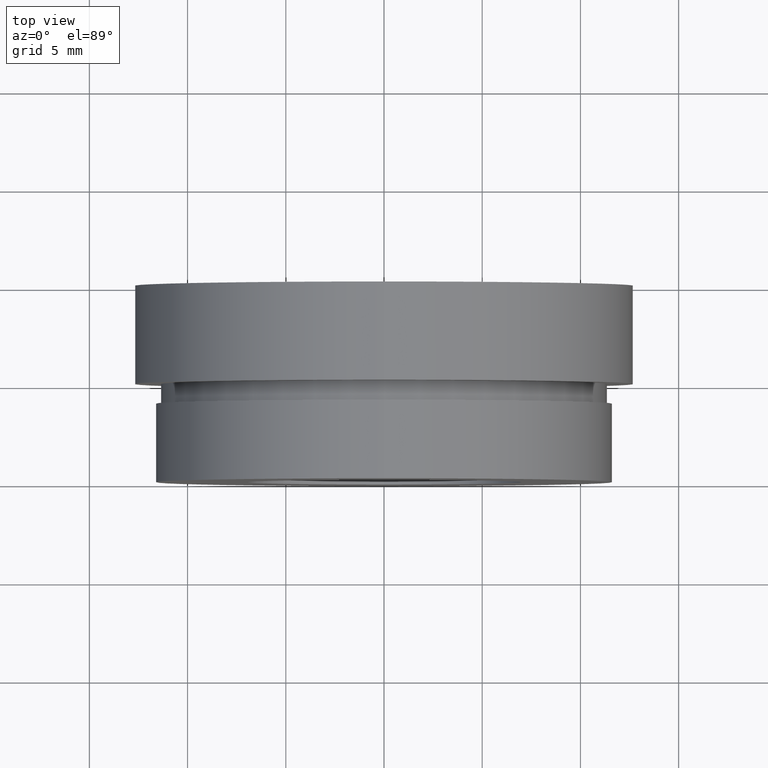
[diagram: clean part render]
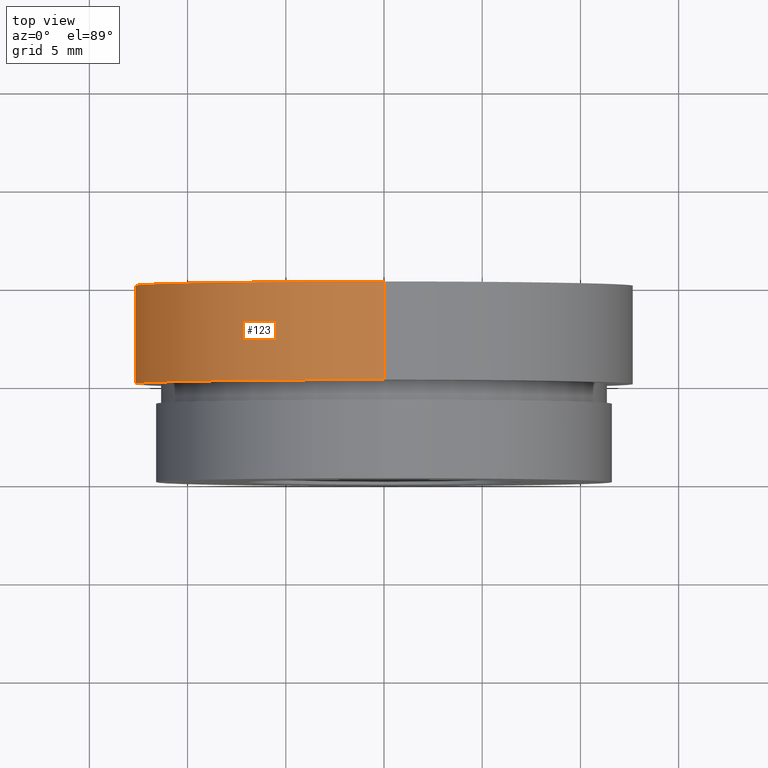
[diagram: same view with one face highlighted and labeled with its STEP entity id]
A machine part, top view. The second image highlights one B-rep face of the part: STEP entity #123.
In plain terms, the highlighted cylindrical surface (partial cylindrical patch) has radius 12.7 mm, axis along (-0, 1, -0).
Its self-contained STEP definition (entity closure, byte-faithful):
#20 = VERTEX_POINT ( 'NONE', #261 ) ;
#28 = CYLINDRICAL_SURFACE ( 'NONE', #325, 12.70000000000000100 ) ;
#37 = EDGE_LOOP ( 'NONE', ( #588, #603, #536, #210 ) ) ;
#54 = DIRECTION ( 'NONE',  ( 0.0000000000000000000, 0.0000000000000000000, 1.000000000000000000 ) ) ;
#72 = CARTESIAN_POINT ( 'NONE',  ( 1.555301434917138600E-015, 13.74468085106383300, -12.70000000000000100 ) ) ;
#98 = CARTESIAN_POINT ( 'NONE',  ( 0.0000000000000000000, 10.00000000000000000, 12.70000000000000100 ) ) ;
#99 = DIRECTION ( 'NONE',  ( -0.0000000000000000000, 1.000000000000000000, -0.0000000000000000000 ) ) ;
#102 = LINE ( 'NONE', #72, #461 ) ;
#123 = ADVANCED_FACE ( 'NONE', ( #321 ), #28, .T. ) ;
#124 = AXIS2_PLACEMENT_3D ( 'NONE', #150, #152, #153 ) ;
#150 = CARTESIAN_POINT ( 'NONE',  ( 0.0000000000000000000, 5.000000000000000900, 0.0000000000000000000 ) ) ;
#152 = DIRECTION ( 'NONE',  ( -0.0000000000000000000, 1.000000000000000000, -0.0000000000000000000 ) ) ;
#153 = DIRECTION ( 'NONE',  ( 0.0000000000000000000, 0.0000000000000000000, 1.000000000000000000 ) ) ;
#154 = VERTEX_POINT ( 'NONE', #98 ) ;
#177 = VERTEX_POINT ( 'NONE', #620 ) ;
#194 = CIRCLE ( 'NONE', #124, 12.70000000000000100 ) ;
#210 = ORIENTED_EDGE ( 'NONE', *, *, #610, .F. ) ;
#211 = EDGE_CURVE ( 'NONE', #177, #154, #469, .T. ) ;
#261 = CARTESIAN_POINT ( 'NONE',  ( 1.555301434917138600E-015, 10.00000000000000000, -12.70000000000000100 ) ) ;
#303 = DIRECTION ( 'NONE',  ( -0.0000000000000000000, 1.000000000000000000, -0.0000000000000000000 ) ) ;
#321 = FACE_OUTER_BOUND ( 'NONE', #37, .T. ) ;
#325 = AXIS2_PLACEMENT_3D ( 'NONE', #412, #410, #544 ) ;
#348 = CARTESIAN_POINT ( 'NONE',  ( 0.0000000000000000000, 10.00000000000000000, 0.0000000000000000000 ) ) ;
#366 = VECTOR ( 'NONE', #303, 1000.000000000000000 ) ;
#390 = AXIS2_PLACEMENT_3D ( 'NONE', #348, #99, #54 ) ;
#399 = VERTEX_POINT ( 'NONE', #404 ) ;
#404 = CARTESIAN_POINT ( 'NONE',  ( 1.555301434917138600E-015, 5.000000000000000900, -12.70000000000000100 ) ) ;
#410 = DIRECTION ( 'NONE',  ( -0.0000000000000000000, 1.000000000000000000, -0.0000000000000000000 ) ) ;
#412 = CARTESIAN_POINT ( 'NONE',  ( 0.0000000000000000000, 13.74468085106383300, 0.0000000000000000000 ) ) ;
#413 = EDGE_CURVE ( 'NONE', #399, #20, #102, .T. ) ;
#443 = CARTESIAN_POINT ( 'NONE',  ( 0.0000000000000000000, 13.74468085106383300, 12.70000000000000100 ) ) ;
#454 = EDGE_CURVE ( 'NONE', #399, #177, #194, .T. ) ;
#461 = VECTOR ( 'NONE', #517, 1000.000000000000000 ) ;
#469 = LINE ( 'NONE', #443, #366 ) ;
#494 = CIRCLE ( 'NONE', #390, 12.70000000000000100 ) ;
#517 = DIRECTION ( 'NONE',  ( -0.0000000000000000000, 1.000000000000000000, -0.0000000000000000000 ) ) ;
#536 = ORIENTED_EDGE ( 'NONE', *, *, #211, .T. ) ;
#544 = DIRECTION ( 'NONE',  ( 0.0000000000000000000, 0.0000000000000000000, 1.000000000000000000 ) ) ;
#588 = ORIENTED_EDGE ( 'NONE', *, *, #413, .F. ) ;
#603 = ORIENTED_EDGE ( 'NONE', *, *, #454, .T. ) ;
#610 = EDGE_CURVE ( 'NONE', #20, #154, #494, .T. ) ;
#620 = CARTESIAN_POINT ( 'NONE',  ( 0.0000000000000000000, 5.000000000000000900, 12.70000000000000100 ) ) ;